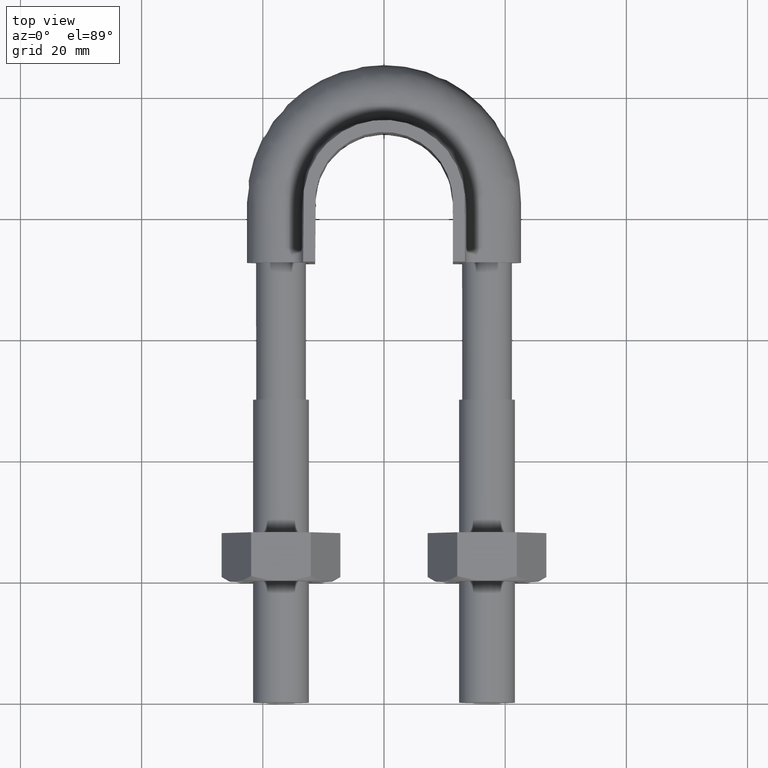
[diagram: clean part render]
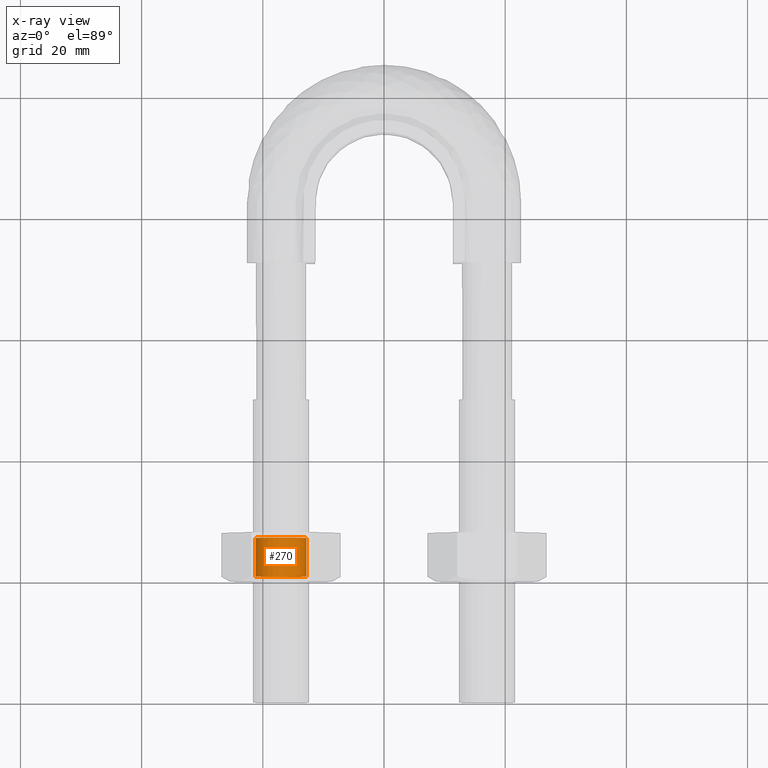
[diagram: x-ray — body ghosted, one internal face saturated and labeled with its STEP entity id]
A machine part, top view, then the same camera in x-ray: the body is ghosted and one INTERNAL B-rep face — a face not visible from any outside direction — is saturated and labeled: STEP entity #270.
In plain terms, the highlighted cylindrical surface (bore or boss wall) has radius 4.188 mm, axis along (-0, -1, 0).
Its self-contained STEP definition (entity closure, byte-faithful):
#270 = ADVANCED_FACE( '', ( #411, #412 ), #413, .F. );
#411 = FACE_OUTER_BOUND( '', #1490, .T. );
#412 = FACE_OUTER_BOUND( '', #1491, .T. );
#413 = CYLINDRICAL_SURFACE( '', #1492, 4.18800000000000 );
#1490 = EDGE_LOOP( '', ( #1904 ) );
#1491 = EDGE_LOOP( '', ( #1905 ) );
#1492 = AXIS2_PLACEMENT_3D( '', #1906, #1907, #1908 );
#1904 = ORIENTED_EDGE( '', *, *, #2186, .T. );
#1905 = ORIENTED_EDGE( '', *, *, #2185, .F. );
#1906 = CARTESIAN_POINT( '', ( -17.0000000000000, 28.0000000000000, -8.81402156122091E-015 ) );
#1907 = DIRECTION( '', ( -2.44921270764475E-016, -1.00000000000000, 3.06151588455594E-016 ) );
#1908 = DIRECTION( '', ( -0.866025403784439, 3.65183836637000E-016, 0.500000000000000 ) );
#2185 = EDGE_CURVE( '', #2399, #2399, #2400, .T. );
#2186 = EDGE_CURVE( '', #2401, #2401, #2402, .T. );
#2399 = VERTEX_POINT( '', #2933 );
#2400 = CIRCLE( '', #2934, 4.18800000000000 );
#2401 = VERTEX_POINT( '', #2935 );
#2402 = CIRCLE( '', #2936, 4.18800000000000 );
#2933 = CARTESIAN_POINT( '', ( -20.6269143910492, 20.8120000000000, 2.09399999999999 ) );
#2934 = AXIS2_PLACEMENT_3D( '', #3253, #3254, #3255 );
#2935 = CARTESIAN_POINT( '', ( -20.6269143910492, 27.1880000000000, 2.09399999999999 ) );
#2936 = AXIS2_PLACEMENT_3D( '', #3256, #3257, #3258 );
#3253 = CARTESIAN_POINT( '', ( -17.0000000000000, 20.8120000000000, -6.61340394340210E-015 ) );
#3254 = DIRECTION( '', ( 2.44921270764475E-016, 1.00000000000000, -3.06151588455594E-016 ) );
#3255 = DIRECTION( '', ( -0.866025403784439, 3.65183836637000E-016, 0.500000000000000 ) );
#3256 = CARTESIAN_POINT( '', ( -17.0000000000000, 27.1880000000000, -8.56542647139497E-015 ) );
#3257 = DIRECTION( '', ( 2.44921270764475E-016, 1.00000000000000, -3.06151588455594E-016 ) );
#3258 = DIRECTION( '', ( -0.866025403784439, 3.65183836637000E-016, 0.500000000000000 ) );